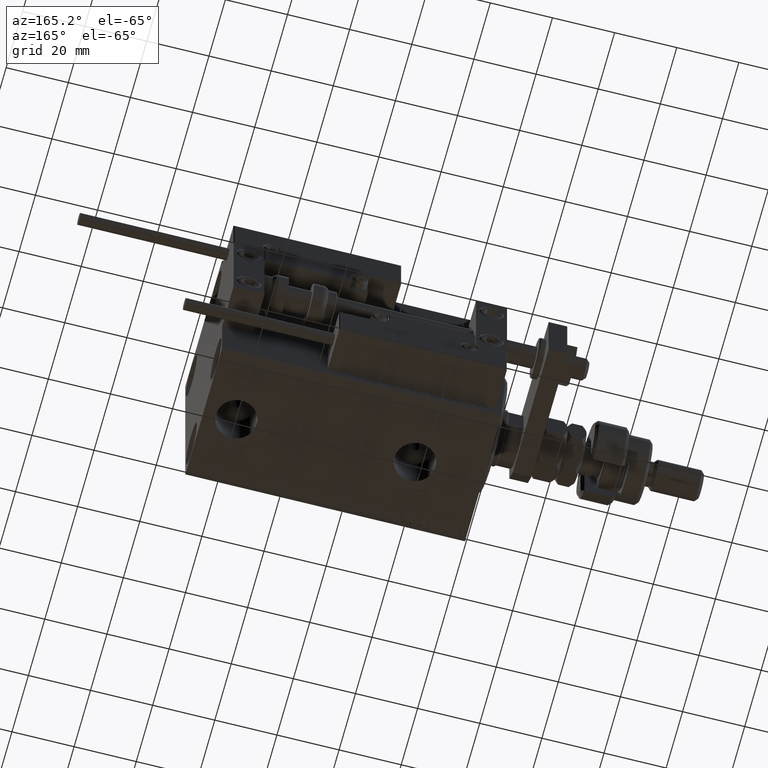
[diagram: clean part render]
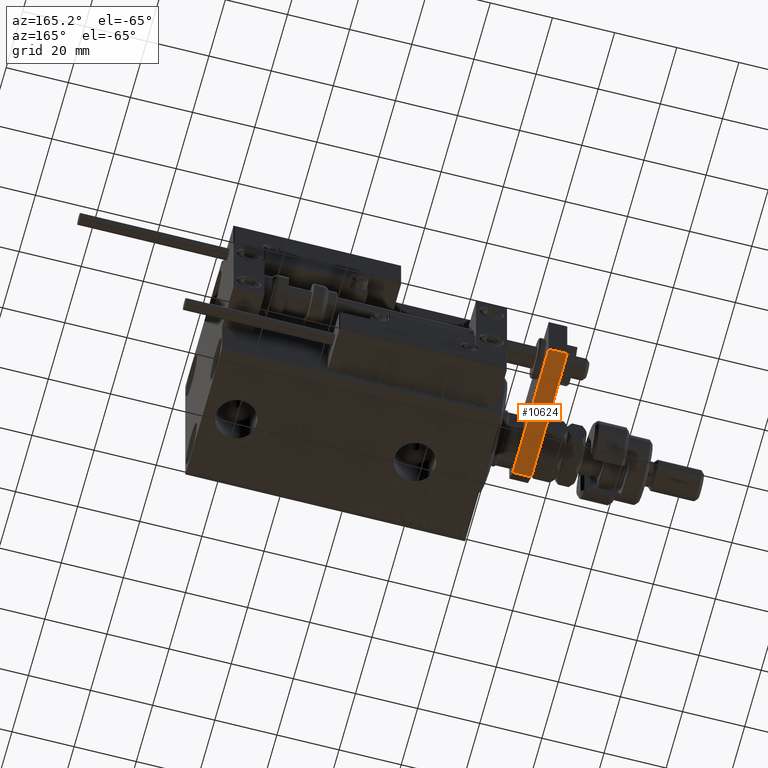
[diagram: same view with one face highlighted and labeled with its STEP entity id]
A machine part, auxiliary view. The second image highlights one B-rep face of the part: STEP entity #10624.
In plain terms, the highlighted planar face has unit normal (0, -0, 1).
Its self-contained STEP definition (entity closure, byte-faithful):
#3052 = CARTESIAN_POINT ( 'NONE',  ( -10.00000000000000000, 48.00000000000000000, 0.000000000000000000 ) ) ;
#5837 = CARTESIAN_POINT ( 'NONE',  ( -10.00000000000000000, 48.00000000000000000, 6.000000000000000000 ) ) ;
#7170 = LINE ( 'NONE', #3052, #11080 ) ;
#8918 = VECTOR ( 'NONE', #28870, 1000.000000000000000 ) ;
#10624 = ADVANCED_FACE ( 'NONE', ( #30584 ), #39141, .F. ) ;
#11080 = VECTOR ( 'NONE', #45122, 1000.000000000000000 ) ;
#11870 = ORIENTED_EDGE ( 'NONE', *, *, #26756, .F. ) ;
#12061 = VERTEX_POINT ( 'NONE', #38707 ) ;
#12548 = VECTOR ( 'NONE', #13825, 1000.000000000000000 ) ;
#13825 = DIRECTION ( 'NONE',  ( 0.000000000000000000, 0.000000000000000000, 1.000000000000000000 ) ) ;
#17467 = EDGE_CURVE ( 'NONE', #27239, #12061, #18275, .T. ) ;
#17966 = LINE ( 'NONE', #42192, #12548 ) ;
#18009 = VERTEX_POINT ( 'NONE', #29990 ) ;
#18275 = LINE ( 'NONE', #19096, #33672 ) ;
#19096 = CARTESIAN_POINT ( 'NONE',  ( -10.00000000000000000, 48.00000000000000000, 6.000000000000000000 ) ) ;
#20159 = ORIENTED_EDGE ( 'NONE', *, *, #17467, .T. ) ;
#22614 = DIRECTION ( 'NONE',  ( 1.084202172485504434E-16, 1.000000000000000000, 0.000000000000000000 ) ) ;
#24203 = LINE ( 'NONE', #28608, #8918 ) ;
#25930 = EDGE_LOOP ( 'NONE', ( #39172, #33970, #11870, #20159 ) ) ;
#26756 = EDGE_CURVE ( 'NONE', #27239, #18009, #24203, .T. ) ;
#27239 = VERTEX_POINT ( 'NONE', #32513 ) ;
#28541 = EDGE_CURVE ( 'NONE', #39607, #18009, #17966, .T. ) ;
#28608 = CARTESIAN_POINT ( 'NONE',  ( -10.00000000000000000, 48.00000000000000000, 6.000000000000000000 ) ) ;
#28870 = DIRECTION ( 'NONE',  ( -1.084202172485504434E-16, -1.000000000000000000, 0.000000000000000000 ) ) ;
#29990 = CARTESIAN_POINT ( 'NONE',  ( -10.00000000000000533, 4.240000000000021529, 6.000000000000000000 ) ) ;
#30584 = FACE_OUTER_BOUND ( 'NONE', #25930, .T. ) ;
#32513 = CARTESIAN_POINT ( 'NONE',  ( -10.00000000000000000, 48.00000000000000000, 6.000000000000000000 ) ) ;
#33672 = VECTOR ( 'NONE', #52639, 1000.000000000000000 ) ;
#33970 = ORIENTED_EDGE ( 'NONE', *, *, #28541, .T. ) ;
#35004 = DIRECTION ( 'NONE',  ( 1.000000000000000000, -1.084202172485504434E-16, 0.000000000000000000 ) ) ;
#37165 = CARTESIAN_POINT ( 'NONE',  ( -10.00000000000000533, 4.240000000000021529, 0.000000000000000000 ) ) ;
#38707 = CARTESIAN_POINT ( 'NONE',  ( -10.00000000000000000, 48.00000000000000000, 0.000000000000000000 ) ) ;
#39141 = PLANE ( 'NONE',  #53683 ) ;
#39172 = ORIENTED_EDGE ( 'NONE', *, *, #39497, .T. ) ;
#39497 = EDGE_CURVE ( 'NONE', #12061, #39607, #7170, .T. ) ;
#39607 = VERTEX_POINT ( 'NONE', #37165 ) ;
#42192 = CARTESIAN_POINT ( 'NONE',  ( -10.00000000000000533, 4.240000000000021529, 6.000000000000000000 ) ) ;
#45122 = DIRECTION ( 'NONE',  ( -1.084202172485504434E-16, -1.000000000000000000, 0.000000000000000000 ) ) ;
#52639 = DIRECTION ( 'NONE',  ( -0.000000000000000000, -0.000000000000000000, -1.000000000000000000 ) ) ;
#53683 = AXIS2_PLACEMENT_3D ( 'NONE', #5837, #35004, #22614 ) ;